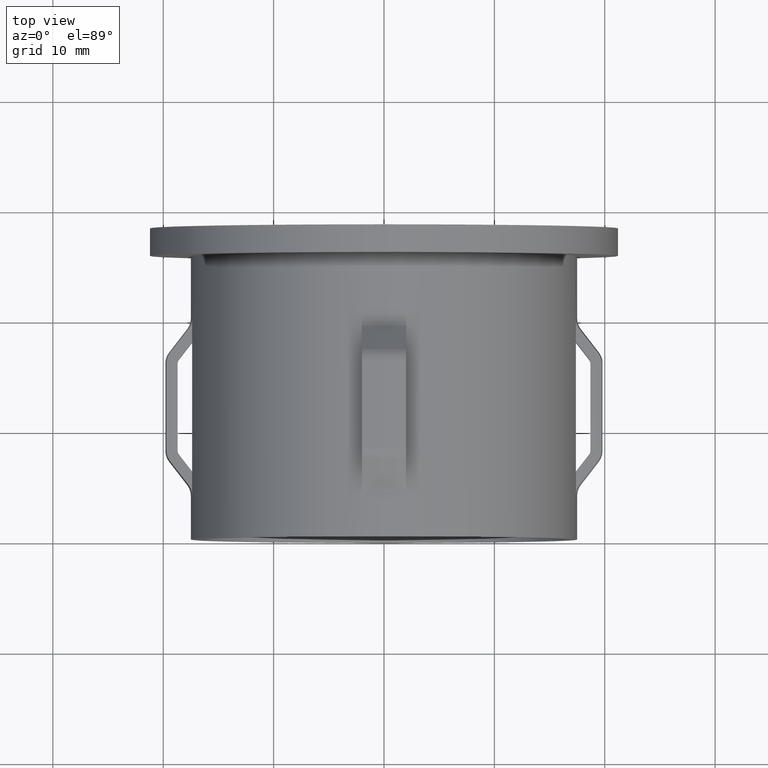
[diagram: clean part render]
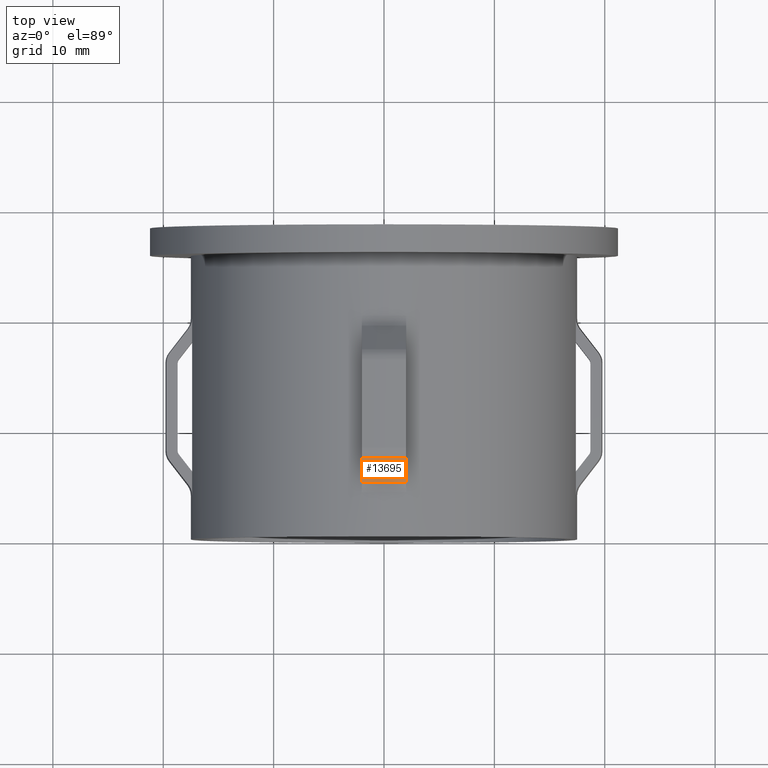
[diagram: same view with one face highlighted and labeled with its STEP entity id]
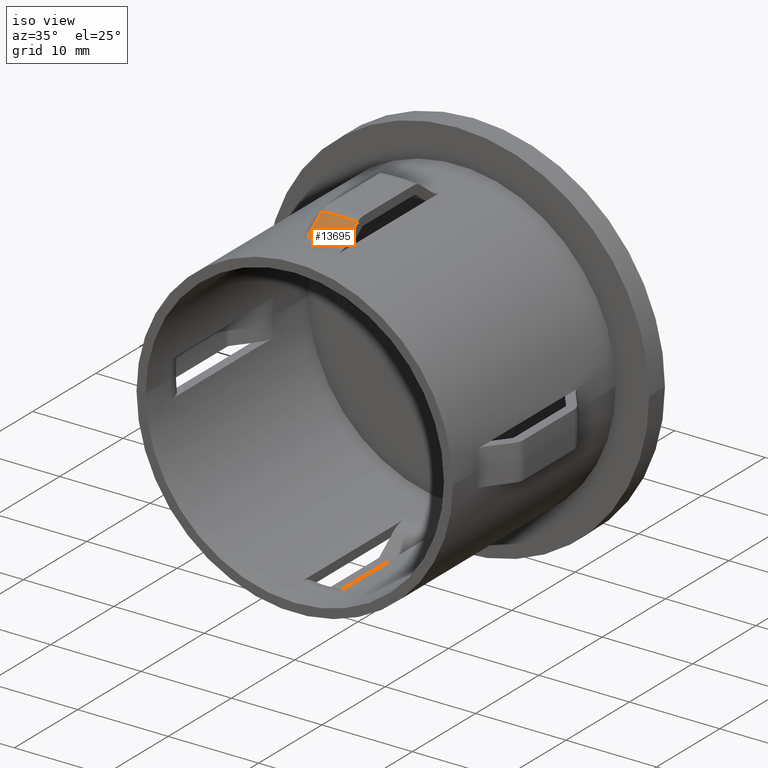
[diagram: same view with one face highlighted and labeled with its STEP entity id]
A machine part, top view. The second image highlights one B-rep face of the part: STEP entity #13695.
A second angle (iso view) of the same face is appended — the face is thin or edge-on in the first view.
In plain terms, the highlighted conical surface has half-angle 37.701 deg.
Its self-contained STEP definition (entity closure, byte-faithful):
#208 = CARTESIAN_POINT ( 'NONE',  ( -1.999999999999996700, 5.060495202478389100, 17.81191609988229600 ) ) ;
#606 = CARTESIAN_POINT ( 'NONE',  ( 3.746901393398228900E-015, 4.917305896997275400, 0.0000000000000000000 ) ) ;
#942 = DIRECTION ( 'NONE',  ( -1.000000000000000000, -1.780406622770464000E-016, 0.0000000000000000000 ) ) ;
#1116 = CARTESIAN_POINT ( 'NONE',  ( 2.000000000000004400, 7.082694103002711300, 19.38391828307800700 ) ) ;
#1294 = CARTESIAN_POINT ( 'NONE',  ( 2.000000000000004400, 5.734433190431959200, 18.33608184474374500 ) ) ;
#1303 = CARTESIAN_POINT ( 'NONE',  ( 3.746901393398228900E-015, 4.917305896997275400, 0.0000000000000000000 ) ) ;
#1438 = CARTESIAN_POINT ( 'NONE',  ( -1.999999999999996700, 4.917305896999594400, 17.70054402987423400 ) ) ;
#1849 = CARTESIAN_POINT ( 'NONE',  ( 2.000000000000004400, 4.917305896999594400, 17.70054402987423400 ) ) ;
#1898 = CARTESIAN_POINT ( 'NONE',  ( -1.999999999999996200, 7.082694103002710400, 19.38391828307800700 ) ) ;
#2509 = DIRECTION ( 'NONE',  ( -1.714505518806297100E-016, 1.000000000000000000, -0.0000000000000000000 ) ) ;
#3003 = CIRCLE ( 'NONE', #15826, 19.48682344572982900 ) ;
#3227 = FACE_OUTER_BOUND ( 'NONE', #7760, .T. ) ;
#3459 = EDGE_CURVE ( 'NONE', #6595, #11728, #11223, .T. ) ;
#3906 = CARTESIAN_POINT ( 'NONE',  ( -1.999999999999996700, 4.965034956402244700, 17.73766896485842500 ) ) ;
#4153 = EDGE_CURVE ( 'NONE', #11728, #11944, #9410, .T. ) ;
#4772 = AXIS2_PLACEMENT_3D ( 'NONE', #1303, #2509, #6263 ) ;
#5163 = ORIENTED_EDGE ( 'NONE', *, *, #14733, .F. ) ;
#5670 = CARTESIAN_POINT ( 'NONE',  ( -1.999999999999996700, 4.917305896999594400, 17.70054402987423400 ) ) ;
#6263 = DIRECTION ( 'NONE',  ( -1.000000000000000000, -1.947685715337457200E-016, 0.0000000000000000000 ) ) ;
#6465 = CARTESIAN_POINT ( 'NONE',  ( -1.999999999999996700, 5.012764729325934500, 17.77479298253360100 ) ) ;
#6507 = CARTESIAN_POINT ( 'NONE',  ( -1.999999999999996200, 7.082694103002710400, 19.38391828307800700 ) ) ;
#6595 = VERTEX_POINT ( 'NONE', #5670 ) ;
#7760 = EDGE_LOOP ( 'NONE', ( #16549, #11570, #14130, #5163 ) ) ;
#8660 = DIRECTION ( 'NONE',  ( -1.714505518806297100E-016, 1.000000000000000000, -0.0000000000000000000 ) ) ;
#8999 = CARTESIAN_POINT ( 'NONE',  ( 2.000000000000004400, 5.060495202477135900, 17.81191609988131900 ) ) ;
#9016 = AXIS2_PLACEMENT_3D ( 'NONE', #606, #13309, #13146 ) ;
#9141 = CARTESIAN_POINT ( 'NONE',  ( -1.999999999999996200, 6.408509889070942700, 18.86006927298055700 ) ) ;
#9410 = B_SPLINE_CURVE_WITH_KNOTS ( 'NONE', 3,
 ( #14047, #16429, #15318, #8999, #1294, #10227, #1116 ),
 .UNSPECIFIED., .F., .F.,
 ( 4, 3, 4 ),
 ( 0.005285805697481172800, 0.005467208288225144600, 0.008028551137052218600 ),
 .UNSPECIFIED. ) ;
#9445 = CONICAL_SURFACE ( 'NONE', #4772, 17.81317655427018200, 0.6580020504310569700 ) ;
#10227 = CARTESIAN_POINT ( 'NONE',  ( 2.000000000000004400, 6.408509889070526100, 18.86006927298023300 ) ) ;
#10434 = B_SPLINE_CURVE_WITH_KNOTS ( 'NONE', 3,
 ( #1438, #3906, #6465, #208, #12971, #9141, #6507 ),
 .UNSPECIFIED., .F., .F.,
 ( 4, 3, 4 ),
 ( 0.005285805697475323300, 0.005467208288220887600, 0.008028551137046369100 ),
 .UNSPECIFIED. ) ;
#11223 = CIRCLE ( 'NONE', #9016, 17.81317655427018200 ) ;
#11570 = ORIENTED_EDGE ( 'NONE', *, *, #3459, .T. ) ;
#11728 = VERTEX_POINT ( 'NONE', #1849 ) ;
#11944 = VERTEX_POINT ( 'NONE', #12610 ) ;
#12610 = CARTESIAN_POINT ( 'NONE',  ( 2.000000000000004400, 7.082694103002711300, 19.38391828307800700 ) ) ;
#12971 = CARTESIAN_POINT ( 'NONE',  ( -1.999999999999996700, 5.734433190432793200, 18.33608184474439500 ) ) ;
#13146 = DIRECTION ( 'NONE',  ( -1.000000000000000000, -1.947685715337457200E-016, 0.0000000000000000000 ) ) ;
#13309 = DIRECTION ( 'NONE',  ( -1.714505518806297100E-016, 1.000000000000000000, -0.0000000000000000000 ) ) ;
#13368 = EDGE_CURVE ( 'NONE', #6595, #15542, #10434, .T. ) ;
#13695 = ADVANCED_FACE ( 'NONE', ( #3227 ), #9445, .T. ) ;
#14047 = CARTESIAN_POINT ( 'NONE',  ( 2.000000000000004400, 4.917305896999594400, 17.70054402987423400 ) ) ;
#14130 = ORIENTED_EDGE ( 'NONE', *, *, #4153, .T. ) ;
#14733 = EDGE_CURVE ( 'NONE', #15542, #11944, #3003, .T. ) ;
#14973 = CARTESIAN_POINT ( 'NONE',  ( 3.375644390442790200E-015, 7.082694103002711300, 0.0000000000000000000 ) ) ;
#15318 = CARTESIAN_POINT ( 'NONE',  ( 2.000000000000004400, 5.012764729325099600, 17.77479298253294400 ) ) ;
#15542 = VERTEX_POINT ( 'NONE', #1898 ) ;
#15826 = AXIS2_PLACEMENT_3D ( 'NONE', #14973, #8660, #942 ) ;
#16429 = CARTESIAN_POINT ( 'NONE',  ( 2.000000000000004400, 4.965034956401827200, 17.73766896485809900 ) ) ;
#16549 = ORIENTED_EDGE ( 'NONE', *, *, #13368, .F. ) ;